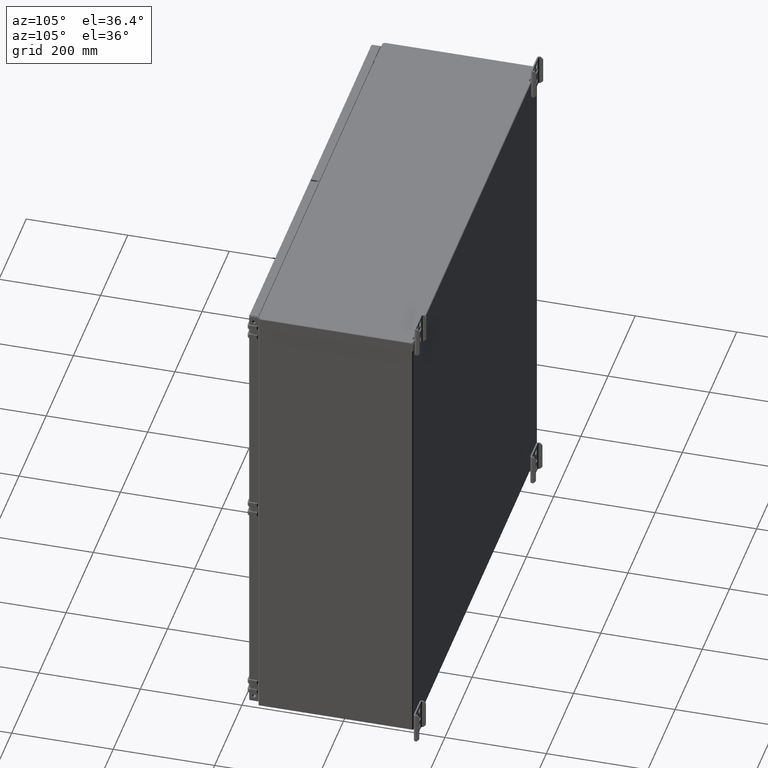
[diagram: clean part render]
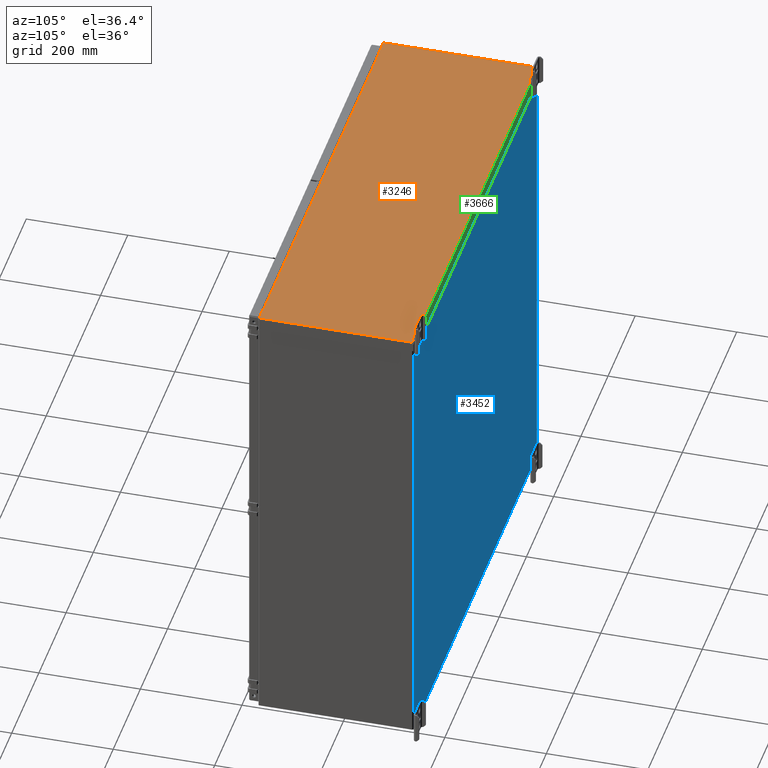
[diagram: same view with three faces highlighted in distinct colors, each labeled with its STEP entity id]
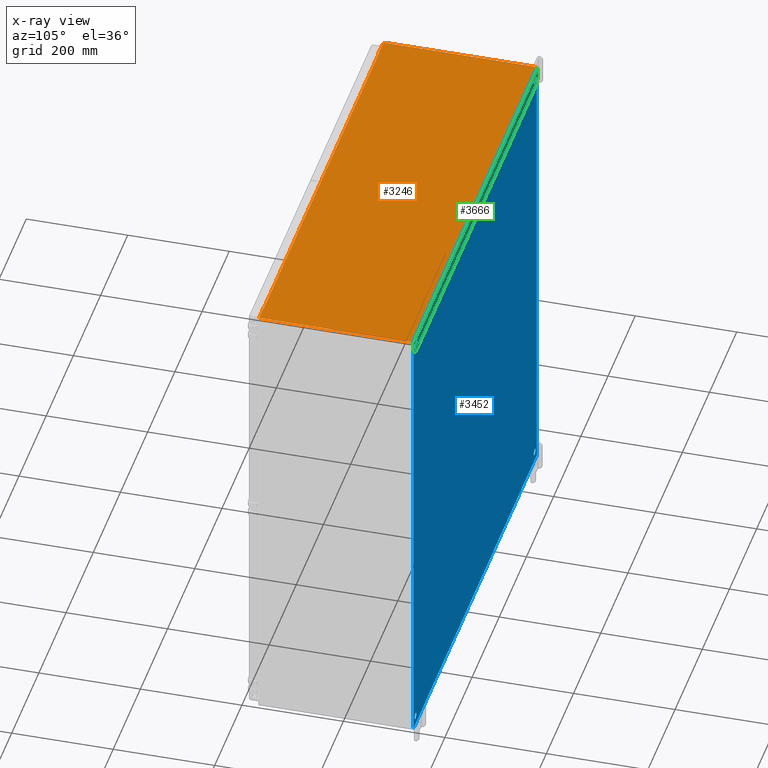
[diagram: x-ray of the same camera — body ghosted, the three highlighted faces saturated]
A machine part, auxiliary view with three faces highlighted in distinct colors.
The next image is the same camera in x-ray (body ghosted, the three faces saturated) — at least one of them is partly hidden behind the body in this view.
Their STEP definitions:

[orange] entity #3246 — the highlighted planar face has unit normal (0, 0, 1).
#3246 = ADVANCED_FACE( '', ( #7098 ), #7099, .T. );
#7098 = FACE_OUTER_BOUND( '', #13511, .T. );
#7099 = PLANE( '', #13512 );
#13511 = EDGE_LOOP( '', ( #25732, #25733, #25734, #25735, #25736, #25737, #25738, #25739, #25740, #25741, #25742, #25743, #25744, #25745 ) );
#13512 = AXIS2_PLACEMENT_3D( '', #25746, #25747, #25748 );
#25732 = ORIENTED_EDGE( '', *, *, #36780, .F. );
#25733 = ORIENTED_EDGE( '', *, *, #36781, .T. );
#25734 = ORIENTED_EDGE( '', *, *, #36782, .F. );
#25735 = ORIENTED_EDGE( '', *, *, #36783, .T. );
#25736 = ORIENTED_EDGE( '', *, *, #35164, .T. );
#25737 = ORIENTED_EDGE( '', *, *, #35881, .F. );
#25738 = ORIENTED_EDGE( '', *, *, #36784, .F. );
#25739 = ORIENTED_EDGE( '', *, *, #33926, .F. );
#25740 = ORIENTED_EDGE( '', *, *, #36785, .F. );
#25741 = ORIENTED_EDGE( '', *, *, #36786, .T. );
#25742 = ORIENTED_EDGE( '', *, *, #36787, .T. );
#25743 = ORIENTED_EDGE( '', *, *, #36518, .T. );
#25744 = ORIENTED_EDGE( '', *, *, #36788, .F. );
#25745 = ORIENTED_EDGE( '', *, *, #36789, .T. );
#25746 = CARTESIAN_POINT( '', ( -422.783000000000, -153.924000000000, 1.52400000000000 ) );
#25747 = DIRECTION( '', ( 0.000000000000000, 0.000000000000000, 1.00000000000000 ) );
#25748 = DIRECTION( '', ( 1.00000000000000, 0.000000000000000, 0.000000000000000 ) );
#33926 = EDGE_CURVE( '', #38721, #38722, #38723, .T. );
#35164 = EDGE_CURVE( '', #40884, #40885, #40886, .T. );
#35881 = EDGE_CURVE( '', #42028, #40885, #42030, .T. );
#36518 = EDGE_CURVE( '', #42943, #42948, #42950, .T. );
#36780 = EDGE_CURVE( '', #43124, #39683, #43316, .T. );
#36781 = EDGE_CURVE( '', #43124, #43317, #43318, .T. );
#36782 = EDGE_CURVE( '', #43319, #43317, #43320, .F. );
#36783 = EDGE_CURVE( '', #43319, #40884, #43321, .F. );
#36784 = EDGE_CURVE( '', #38722, #42028, #43322, .T. );
#36785 = EDGE_CURVE( '', #43323, #38721, #43324, .T. );
#36786 = EDGE_CURVE( '', #43323, #43325, #43326, .T. );
#36787 = EDGE_CURVE( '', #43325, #42943, #43327, .T. );
#36788 = EDGE_CURVE( '', #43328, #42948, #43329, .F. );
#36789 = EDGE_CURVE( '', #43328, #39683, #43330, .T. );
#38721 = VERTEX_POINT( '', #45991 );
#38722 = VERTEX_POINT( '', #45992 );
#38723 = LINE( '', #45993, #45994 );
#39683 = VERTEX_POINT( '', #48596 );
#40884 = VERTEX_POINT( '', #51415 );
#40885 = VERTEX_POINT( '', #51416 );
#40886 = LINE( '', #51417, #51418 );
#42028 = VERTEX_POINT( '', #54338 );
#42030 = LINE( '', #54341, #54342 );
#42943 = VERTEX_POINT( '', #56499 );
#42948 = VERTEX_POINT( '', #56506 );
#42950 = LINE( '', #56509, #56510 );
#43124 = VERTEX_POINT( '', #56846 );
#43316 = LINE( '', #57283, #57284 );
#43317 = VERTEX_POINT( '', #57285 );
#43318 = LINE( '', #57286, #57287 );
#43319 = VERTEX_POINT( '', #57288 );
#43320 = LINE( '', #57289, #57290 );
#43321 = LINE( '', #57291, #57292 );
#43322 = LINE( '', #57293, #57294 );
#43323 = VERTEX_POINT( '', #57295 );
#43324 = LINE( '', #57296, #57297 );
#43325 = VERTEX_POINT( '', #57298 );
#43326 = LINE( '', #57299, #57300 );
#43327 = LINE( '', #57301, #57302 );
#43328 = VERTEX_POINT( '', #57303 );
#43329 = LINE( '', #57304, #57305 );
#43330 = LINE( '', #57306, #57307 );
#45991 = CARTESIAN_POINT( '', ( 422.783000000000, -151.587200000000, 1.52400000000000 ) );
#45992 = CARTESIAN_POINT( '', ( -422.783000000000, -151.587200000000, 1.52400000000000 ) );
#45993 = CARTESIAN_POINT( '', ( 422.783000000000, -151.587200000000, 1.52400000000000 ) );
#45994 = VECTOR( '', #62325, 1000.00000000000 );
#48596 = CARTESIAN_POINT( '', ( 456.784075000000, 150.063200000000, 1.52400000000000 ) );
#51415 = CARTESIAN_POINT( '', ( -456.072875000000, -152.400000000000, 1.52400000000000 ) );
#51416 = CARTESIAN_POINT( '', ( -422.785000000000, -152.400000000000, 1.52400000000000 ) );
#51417 = CARTESIAN_POINT( '', ( -459.120875000000, -152.400000000000, 1.52400000000000 ) );
#51418 = VECTOR( '', #63246, 1000.00000000000 );
#54338 = CARTESIAN_POINT( '', ( -422.785000000000, -151.587200000000, 1.52400000000000 ) );
#54341 = CARTESIAN_POINT( '', ( -422.785000000000, -153.924000000000, 1.52400000000000 ) );
#54342 = VECTOR( '', #63763, 1000.00000000000 );
#56499 = CARTESIAN_POINT( '', ( 456.072875000000, -152.400000000000, 1.52400000000000 ) );
#56506 = CARTESIAN_POINT( '', ( 456.072875000000, -150.114000000000, 1.52400000000000 ) );
#56509 = CARTESIAN_POINT( '', ( 456.072875000000, -153.924000000000, 1.52400000000000 ) );
#56510 = VECTOR( '', #64242, 1000.00000000000 );
#56846 = CARTESIAN_POINT( '', ( -456.784075000000, 150.063200000000, 1.52400000000000 ) );
#57283 = CARTESIAN_POINT( '', ( 456.784075000000, 150.063200000000, 1.52400000000000 ) );
#57284 = VECTOR( '', #64459, 1000.00000000000 );
#57285 = CARTESIAN_POINT( '', ( -456.784075000000, -150.114000000000, 1.52400000000000 ) );
#57286 = CARTESIAN_POINT( '', ( -456.784075000000, 152.400000000000, 1.52400000000000 ) );
#57287 = VECTOR( '', #64460, 1000.00000000000 );
#57288 = CARTESIAN_POINT( '', ( -456.072875000000, -150.114000000000, 1.52400000000000 ) );
#57289 = CARTESIAN_POINT( '', ( -422.783000000000, -150.114000000000, 1.52400000000000 ) );
#57290 = VECTOR( '', #64461, 1000.00000000000 );
#57291 = CARTESIAN_POINT( '', ( -456.072875000000, -153.924000000000, 1.52400000000000 ) );
#57292 = VECTOR( '', #64462, 1000.00000000000 );
#57293 = CARTESIAN_POINT( '', ( -422.785000000000, -151.587200000000, 1.52400000000000 ) );
#57294 = VECTOR( '', #64463, 1000.00000000000 );
#57295 = CARTESIAN_POINT( '', ( 422.785000000000, -151.587200000000, 1.52400000000000 ) );
#57296 = CARTESIAN_POINT( '', ( -422.785000000000, -151.587200000000, 1.52400000000000 ) );
#57297 = VECTOR( '', #64464, 1000.00000000000 );
#57298 = CARTESIAN_POINT( '', ( 422.785000000000, -152.400000000000, 1.52400000000000 ) );
#57299 = CARTESIAN_POINT( '', ( 422.785000000000, -153.924000000000, 1.52400000000000 ) );
#57300 = VECTOR( '', #64465, 1000.00000000000 );
#57301 = CARTESIAN_POINT( '', ( 459.120875000000, -152.400000000000, 1.52400000000000 ) );
#57302 = VECTOR( '', #64466, 1000.00000000000 );
#57303 = CARTESIAN_POINT( '', ( 456.784075000000, -150.114000000000, 1.52400000000000 ) );
#57304 = CARTESIAN_POINT( '', ( -422.783000000000, -150.114000000000, 1.52400000000000 ) );
#57305 = VECTOR( '', #64467, 1000.00000000000 );
#57306 = CARTESIAN_POINT( '', ( 456.784075000000, -152.400000000000, 1.52400000000000 ) );
#57307 = VECTOR( '', #64468, 1000.00000000000 );
#62325 = DIRECTION( '', ( -1.00000000000000, 0.000000000000000, 0.000000000000000 ) );
#63246 = DIRECTION( '', ( 1.00000000000000, 0.000000000000000, 0.000000000000000 ) );
#63763 = DIRECTION( '', ( 0.000000000000000, -1.00000000000000, 0.000000000000000 ) );
#64242 = DIRECTION( '', ( 0.000000000000000, 1.00000000000000, 0.000000000000000 ) );
#64459 = DIRECTION( '', ( 1.00000000000000, 1.38777878078006E-011, 0.000000000000000 ) );
#64460 = DIRECTION( '', ( 0.000000000000000, -1.00000000000000, 0.000000000000000 ) );
#64461 = DIRECTION( '', ( 1.00000000000000, 0.000000000000000, 0.000000000000000 ) );
#64462 = DIRECTION( '', ( 0.000000000000000, 1.00000000000000, 0.000000000000000 ) );
#64463 = DIRECTION( '', ( -1.00000000000000, 0.000000000000000, 0.000000000000000 ) );
#64464 = DIRECTION( '', ( -1.00000000000000, 0.000000000000000, 0.000000000000000 ) );
#64465 = DIRECTION( '', ( -2.37551999449061E-014, -1.00000000000000, 0.000000000000000 ) );
#64466 = DIRECTION( '', ( 1.00000000000000, -3.05527779107930E-015, 0.000000000000000 ) );
#64467 = DIRECTION( '', ( 1.00000000000000, 0.000000000000000, 0.000000000000000 ) );
#64468 = DIRECTION( '', ( 0.000000000000000, 1.00000000000000, 0.000000000000000 ) );

[blue] entity #3452 — the highlighted planar face has unit normal (-0, -1, 0).
#3452 = ADVANCED_FACE( '', ( #7418, #7419, #7420, #7421, #7422 ), #7423, .F. );
#7418 = FACE_BOUND( '', #14580, .T. );
#7419 = FACE_BOUND( '', #14581, .T. );
#7420 = FACE_BOUND( '', #14582, .T. );
#7421 = FACE_BOUND( '', #14583, .T. );
#7422 = FACE_OUTER_BOUND( '', #14584, .T. );
#7423 = PLANE( '', #14585 );
#14580 = EDGE_LOOP( '', ( #26744 ) );
#14581 = EDGE_LOOP( '', ( #26745 ) );
#14582 = EDGE_LOOP( '', ( #26746 ) );
#14583 = EDGE_LOOP( '', ( #26747 ) );
#14584 = EDGE_LOOP( '', ( #26748, #26749, #26750, #26751 ) );
#14585 = AXIS2_PLACEMENT_3D( '', #26752, #26753, #26754 );
#26744 = ORIENTED_EDGE( '', *, *, #35143, .F. );
#26745 = ORIENTED_EDGE( '', *, *, #37133, .F. );
#26746 = ORIENTED_EDGE( '', *, *, #37134, .F. );
#26747 = ORIENTED_EDGE( '', *, *, #37135, .F. );
#26748 = ORIENTED_EDGE( '', *, *, #37136, .T. );
#26749 = ORIENTED_EDGE( '', *, *, #36917, .F. );
#26750 = ORIENTED_EDGE( '', *, *, #37137, .F. );
#26751 = ORIENTED_EDGE( '', *, *, #37138, .T. );
#26752 = CARTESIAN_POINT( '', ( -457.200000000000, 152.400000000000, -457.200000000000 ) );
#26753 = DIRECTION( '', ( -6.07077331925392E-017, -1.00000000000000, 0.000000000000000 ) );
#26754 = DIRECTION( '', ( 1.00000000000000, -6.07077331925392E-017, 0.000000000000000 ) );
#35143 = EDGE_CURVE( '', #40850, #40850, #40851, .F. );
#36917 = EDGE_CURVE( '', #43499, #43497, #43501, .T. );
#37133 = EDGE_CURVE( '', #43796, #43796, #43797, .F. );
#37134 = EDGE_CURVE( '', #43798, #43798, #43799, .F. );
#37135 = EDGE_CURVE( '', #43800, #43800, #43801, .F. );
#37136 = EDGE_CURVE( '', #43802, #43497, #43803, .T. );
#37137 = EDGE_CURVE( '', #43804, #43499, #43805, .T. );
#37138 = EDGE_CURVE( '', #43804, #43802, #43806, .T. );
#40850 = VERTEX_POINT( '', #51308 );
#40851 = CIRCLE( '', #51309, 6.35000000000000 );
#43497 = VERTEX_POINT( '', #57788 );
#43499 = VERTEX_POINT( '', #57790 );
#43501 = LINE( '', #57792, #57793 );
#43796 = VERTEX_POINT( '', #58439 );
#43797 = CIRCLE( '', #58440, 6.35000000000000 );
#43798 = VERTEX_POINT( '', #58441 );
#43799 = CIRCLE( '', #58442, 6.35000000000000 );
#43800 = VERTEX_POINT( '', #58443 );
#43801 = CIRCLE( '', #58444, 6.35000000000000 );
#43802 = VERTEX_POINT( '', #58445 );
#43803 = LINE( '', #58446, #58447 );
#43804 = VERTEX_POINT( '', #58448 );
#43805 = LINE( '', #58449, #58450 );
#43806 = LINE( '', #58451, #58452 );
#51308 = CARTESIAN_POINT( '', ( 444.500000000000, 152.400000000000, 439.674000000000 ) );
#51309 = AXIS2_PLACEMENT_3D( '', #63228, #63229, #63230 );
#57788 = CARTESIAN_POINT( '', ( 454.863200000000, 152.400000000000, 457.200000000000 ) );
#57790 = CARTESIAN_POINT( '', ( 454.863200000000, 152.400000000000, -457.200000000000 ) );
#57792 = CARTESIAN_POINT( '', ( 454.863200000000, 152.400000000000, -457.200000000000 ) );
#57793 = VECTOR( '', #64547, 1000.00000000000 );
#58439 = CARTESIAN_POINT( '', ( 444.500000000000, 152.400000000000, -438.150000000000 ) );
#58440 = AXIS2_PLACEMENT_3D( '', #64701, #64702, #64703 );
#58441 = CARTESIAN_POINT( '', ( -431.800000000000, 152.400000000000, 439.674000000000 ) );
#58442 = AXIS2_PLACEMENT_3D( '', #64704, #64705, #64706 );
#58443 = CARTESIAN_POINT( '', ( -431.800000000000, 152.400000000000, -438.150000000000 ) );
#58444 = AXIS2_PLACEMENT_3D( '', #64707, #64708, #64709 );
#58445 = CARTESIAN_POINT( '', ( -454.863200000000, 152.400000000000, 457.200000000000 ) );
#58446 = CARTESIAN_POINT( '', ( -457.200000000000, 152.400000000000, 457.200000000000 ) );
#58447 = VECTOR( '', #64710, 1000.00000000000 );
#58448 = CARTESIAN_POINT( '', ( -454.863200000000, 152.400000000000, -457.200000000000 ) );
#58449 = CARTESIAN_POINT( '', ( -457.200000000000, 152.400000000000, -457.200000000000 ) );
#58450 = VECTOR( '', #64711, 1000.00000000000 );
#58451 = CARTESIAN_POINT( '', ( -454.863200000000, 152.400000000000, -457.200000000000 ) );
#58452 = VECTOR( '', #64712, 1000.00000000000 );
#63228 = CARTESIAN_POINT( '', ( 438.150000000000, 152.400000000000, 439.674000000000 ) );
#63229 = DIRECTION( '', ( -6.07077331925392E-017, -1.00000000000000, 0.000000000000000 ) );
#63230 = DIRECTION( '', ( 1.00000000000000, -6.07077331925392E-017, 0.000000000000000 ) );
#64547 = DIRECTION( '', ( 0.000000000000000, 0.000000000000000, 1.00000000000000 ) );
#64701 = CARTESIAN_POINT( '', ( 438.150000000000, 152.400000000000, -438.150000000000 ) );
#64702 = DIRECTION( '', ( -6.07077331925392E-017, -1.00000000000000, 0.000000000000000 ) );
#64703 = DIRECTION( '', ( 1.00000000000000, -6.07077331925392E-017, 0.000000000000000 ) );
#64704 = CARTESIAN_POINT( '', ( -438.150000000000, 152.400000000000, 439.674000000000 ) );
#64705 = DIRECTION( '', ( -6.07077331925392E-017, -1.00000000000000, 0.000000000000000 ) );
#64706 = DIRECTION( '', ( 1.00000000000000, -6.07077331925392E-017, 0.000000000000000 ) );
#64707 = CARTESIAN_POINT( '', ( -438.150000000000, 152.400000000000, -438.150000000000 ) );
#64708 = DIRECTION( '', ( -6.07077331925392E-017, -1.00000000000000, 0.000000000000000 ) );
#64709 = DIRECTION( '', ( 1.00000000000000, -6.07077331925392E-017, 0.000000000000000 ) );
#64710 = DIRECTION( '', ( 1.00000000000000, -6.07077331925392E-017, 0.000000000000000 ) );
#64711 = DIRECTION( '', ( 1.00000000000000, -6.07077331925392E-017, 0.000000000000000 ) );
#64712 = DIRECTION( '', ( 0.000000000000000, 0.000000000000000, 1.00000000000000 ) );

[green] entity #3666 — the highlighted planar face has unit normal (0, 1, -0).
#3666 = ADVANCED_FACE( '', ( #7781, #7782, #7783 ), #7784, .T. );
#7781 = FACE_BOUND( '', #15864, .T. );
#7782 = FACE_BOUND( '', #15865, .T. );
#7783 = FACE_OUTER_BOUND( '', #15866, .T. );
#7784 = PLANE( '', #15867 );
#15864 = EDGE_LOOP( '', ( #27837 ) );
#15865 = EDGE_LOOP( '', ( #27838 ) );
#15866 = EDGE_LOOP( '', ( #27839, #27840, #27841, #27842, #27843, #27844, #27845, #27846 ) );
#15867 = AXIS2_PLACEMENT_3D( '', #27847, #27848, #27849 );
#27837 = ORIENTED_EDGE( '', *, *, #33987, .T. );
#27838 = ORIENTED_EDGE( '', *, *, #37472, .T. );
#27839 = ORIENTED_EDGE( '', *, *, #37101, .T. );
#27840 = ORIENTED_EDGE( '', *, *, #37473, .T. );
#27841 = ORIENTED_EDGE( '', *, *, #35715, .T. );
#27842 = ORIENTED_EDGE( '', *, *, #37474, .T. );
#27843 = ORIENTED_EDGE( '', *, *, #37475, .T. );
#27844 = ORIENTED_EDGE( '', *, *, #36432, .T. );
#27845 = ORIENTED_EDGE( '', *, *, #37476, .T. );
#27846 = ORIENTED_EDGE( '', *, *, #36280, .T. );
#27847 = CARTESIAN_POINT( '', ( -456.782075000000, 152.400000000000, 0.127202221065908 ) );
#27848 = DIRECTION( '', ( 0.000000000000000, 1.00000000000000, -6.12323399573677E-017 ) );
#27849 = DIRECTION( '', ( 0.000000000000000, 6.12323399573677E-017, 1.00000000000000 ) );
#33987 = EDGE_CURVE( '', #38829, #38829, #38830, .F. );
#35715 = EDGE_CURVE( '', #41768, #41769, #41770, .T. );
#36280 = EDGE_CURVE( '', #41560, #42625, #42627, .T. );
#36432 = EDGE_CURVE( '', #42838, #42836, #42839, .T. );
#37101 = EDGE_CURVE( '', #42625, #43751, #43753, .T. );
#37472 = EDGE_CURVE( '', #44255, #44255, #44256, .F. );
#37473 = EDGE_CURVE( '', #43751, #41768, #44257, .F. );
#37474 = EDGE_CURVE( '', #41769, #44258, #44259, .F. );
#37475 = EDGE_CURVE( '', #44258, #42838, #44260, .T. );
#37476 = EDGE_CURVE( '', #42836, #41560, #44261, .T. );
#38829 = VERTEX_POINT( '', #46328 );
#38830 = CIRCLE( '', #46329, 7.93750000000000 );
#41560 = VERTEX_POINT( '', #53086 );
#41768 = VERTEX_POINT( '', #53829 );
#41769 = VERTEX_POINT( '', #53830 );
#41770 = LINE( '', #53831, #53832 );
#42625 = VERTEX_POINT( '', #55725 );
#42627 = LINE( '', #55728, #55729 );
#42836 = VERTEX_POINT( '', #56230 );
#42838 = VERTEX_POINT( '', #56233 );
#42839 = LINE( '', #56234, #56235 );
#43751 = VERTEX_POINT( '', #58324 );
#43753 = LINE( '', #58327, #58328 );
#44255 = VERTEX_POINT( '', #59586 );
#44256 = CIRCLE( '', #59587, 7.93750000000000 );
#44257 = LINE( '', #59588, #59589 );
#44258 = VERTEX_POINT( '', #59590 );
#44259 = LINE( '', #59591, #59592 );
#44260 = LINE( '', #59593, #59594 );
#44261 = LINE( '', #59595, #59596 );
#46328 = CARTESIAN_POINT( '', ( 438.150000000000, 152.400000000000, -9.58850000000000 ) );
#46329 = AXIS2_PLACEMENT_3D( '', #62393, #62394, #62395 );
#53086 = CARTESIAN_POINT( '', ( 456.784075000000, 152.400000000000, -0.812800000000000 ) );
#53829 = CARTESIAN_POINT( '', ( 444.894875000000, 152.400000000000, -30.2260000000000 ) );
#53830 = CARTESIAN_POINT( '', ( -444.894875000000, 152.400000000000, -30.2260000000000 ) );
#53831 = CARTESIAN_POINT( '', ( 456.782075000000, 152.400000000000, -30.2260000000000 ) );
#53832 = VECTOR( '', #63596, 1000.00000000000 );
#55725 = CARTESIAN_POINT( '', ( 457.594875000000, 152.400000000000, -0.812800000000000 ) );
#55728 = CARTESIAN_POINT( '', ( -456.782075000000, 152.400000000000, -0.812800000000000 ) );
#55729 = VECTOR( '', #64074, 1000.00000000000 );
#56230 = CARTESIAN_POINT( '', ( -456.784075000000, 152.400000000000, -0.812800000000000 ) );
#56233 = CARTESIAN_POINT( '', ( -457.594875000000, 152.400000000000, -0.812800000000000 ) );
#56234 = CARTESIAN_POINT( '', ( -456.782075000000, 152.400000000000, -0.812800000000000 ) );
#56235 = VECTOR( '', #64187, 1000.00000000000 );
#58324 = CARTESIAN_POINT( '', ( 457.594875000000, 152.400000000000, -17.5260000000000 ) );
#58327 = CARTESIAN_POINT( '', ( 457.594875000000, 152.400000000000, 0.127202221065908 ) );
#58328 = VECTOR( '', #64671, 1000.00000000000 );
#59586 = CARTESIAN_POINT( '', ( -438.150000000000, 152.400000000000, -9.58850000000000 ) );
#59587 = AXIS2_PLACEMENT_3D( '', #64907, #64908, #64909 );
#59588 = CARTESIAN_POINT( '', ( 9.23300111053332, 152.400000000000, -465.887873889467 ) );
#59589 = VECTOR( '', #64910, 1000.00000000000 );
#59590 = CARTESIAN_POINT( '', ( -457.594875000000, 152.400000000000, -17.5260000000000 ) );
#59591 = CARTESIAN_POINT( '', ( -466.015076110533, 152.400000000000, -9.10579888946712 ) );
#59592 = VECTOR( '', #64911, 1000.00000000000 );
#59593 = CARTESIAN_POINT( '', ( -457.594875000000, 152.400000000000, 0.127202221065907 ) );
#59594 = VECTOR( '', #64912, 1000.00000000000 );
#59595 = CARTESIAN_POINT( '', ( -456.782075000000, 152.400000000000, -0.812800000000000 ) );
#59596 = VECTOR( '', #64913, 1000.00000000000 );
#62393 = CARTESIAN_POINT( '', ( 438.150000000000, 152.400000000000, -17.5260000000000 ) );
#62394 = DIRECTION( '', ( 0.000000000000000, 1.00000000000000, -6.12323399573677E-017 ) );
#62395 = DIRECTION( '', ( 0.000000000000000, 6.12323399573677E-017, 1.00000000000000 ) );
#63596 = DIRECTION( '', ( -1.00000000000000, 0.000000000000000, 0.000000000000000 ) );
#64074 = DIRECTION( '', ( 1.00000000000000, 0.000000000000000, 0.000000000000000 ) );
#64187 = DIRECTION( '', ( 1.00000000000000, 0.000000000000000, 0.000000000000000 ) );
#64671 = DIRECTION( '', ( 0.000000000000000, -6.12323399573677E-017, -1.00000000000000 ) );
#64907 = CARTESIAN_POINT( '', ( -438.150000000000, 152.400000000000, -17.5260000000000 ) );
#64908 = DIRECTION( '', ( 0.000000000000000, 1.00000000000000, -6.12323399573677E-017 ) );
#64909 = DIRECTION( '', ( 0.000000000000000, 6.12323399573677E-017, 1.00000000000000 ) );
#64910 = DIRECTION( '', ( 0.707106781186547, 4.32978028117747E-017, 0.707106781186548 ) );
#64911 = DIRECTION( '', ( 0.707106781186550, -4.32978028117745E-017, -0.707106781186545 ) );
#64912 = DIRECTION( '', ( -1.82884002903429E-015, 6.12323399573677E-017, 1.00000000000000 ) );
#64913 = DIRECTION( '', ( 1.00000000000000, 0.000000000000000, 0.000000000000000 ) );